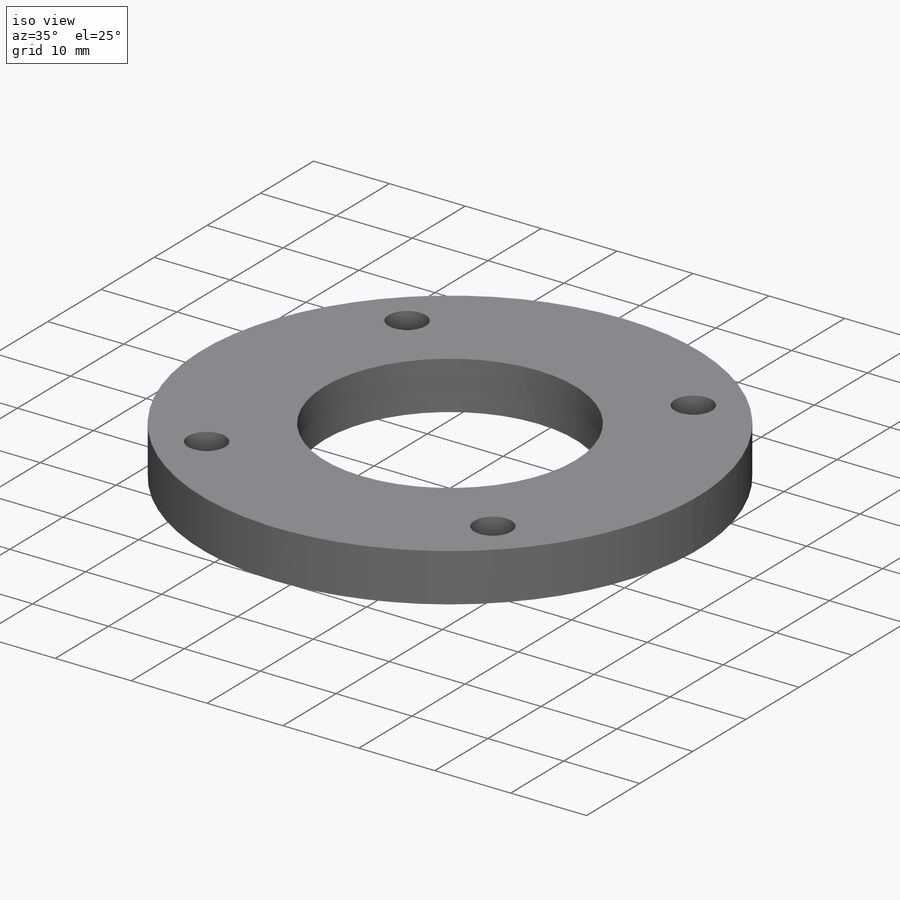
[diagram: iso view]
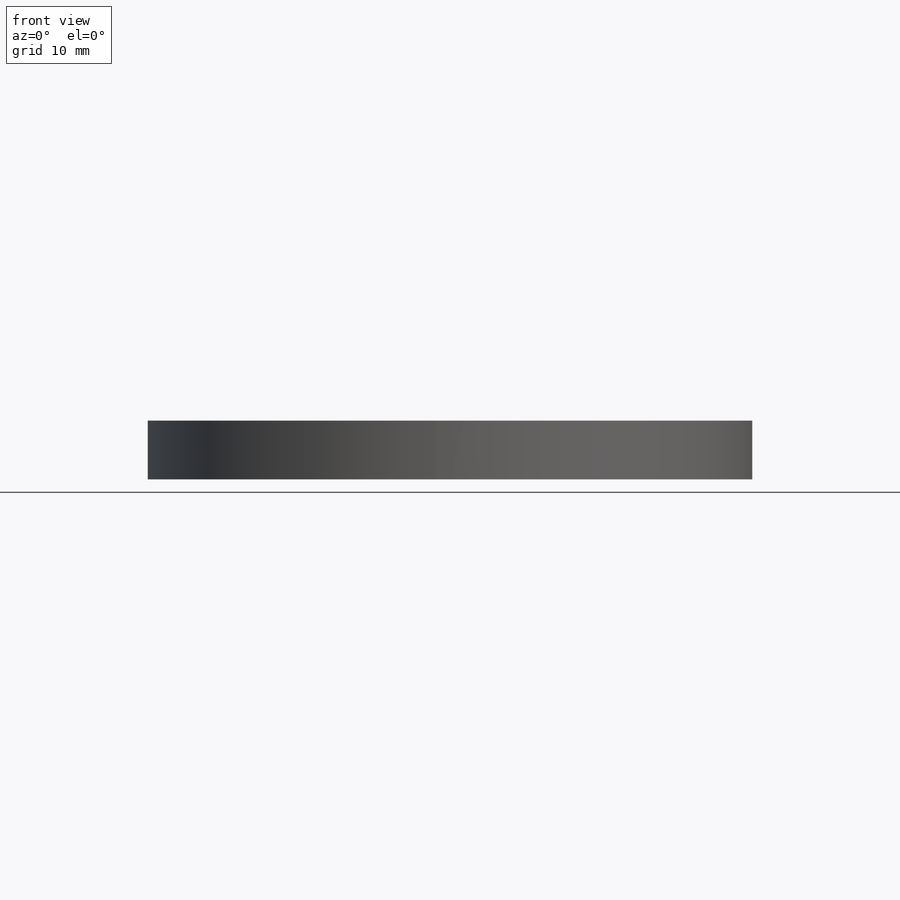
[diagram: front view]
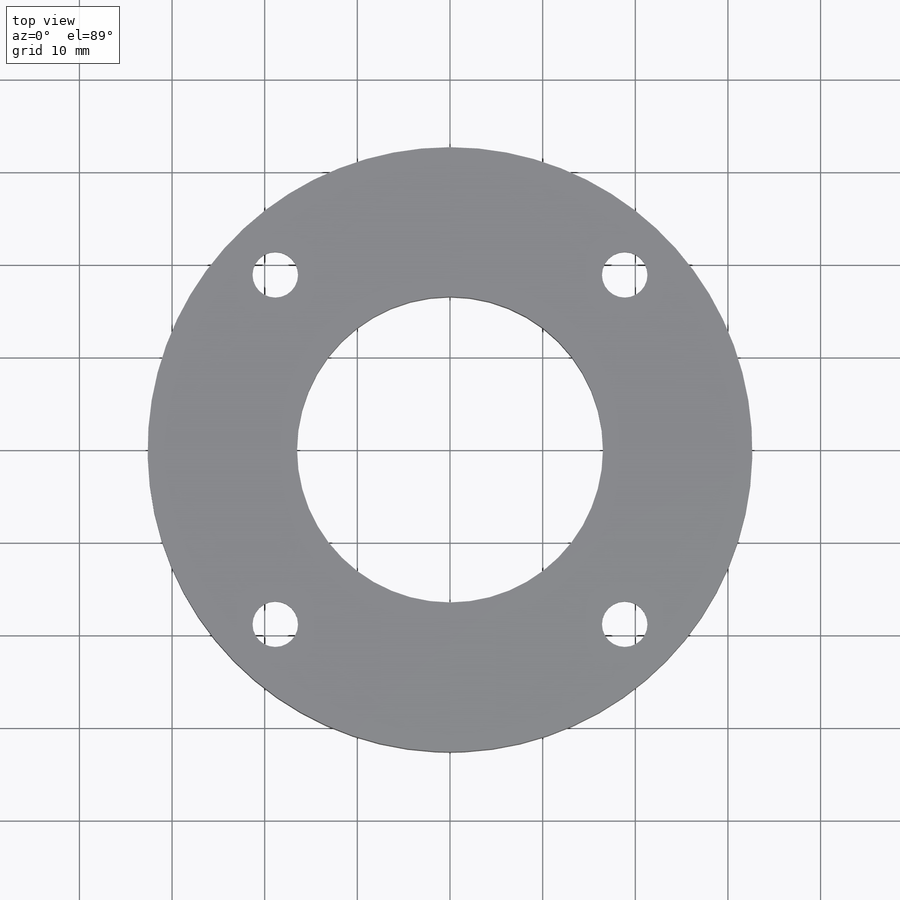
[diagram: top view]
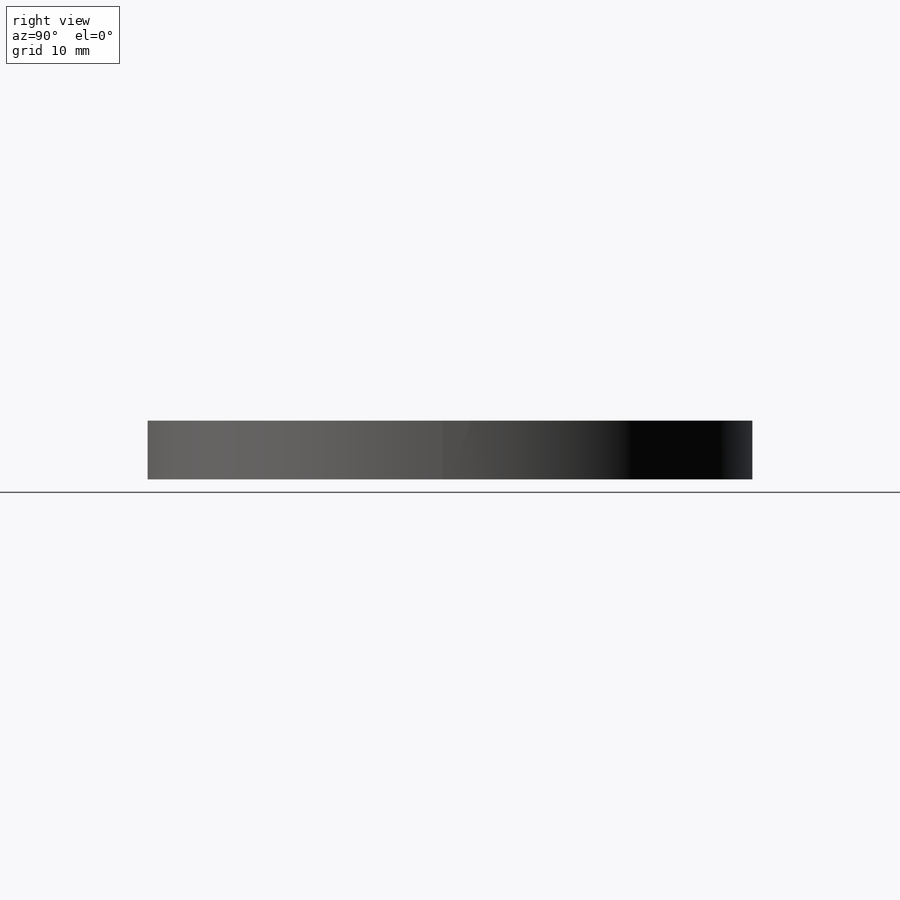
[diagram: right view]
SOLIDWORKS PART (.sldprt)
format: sldprt  version: not decoded by parser v0  size: 207,872 bytes
history: native  units: mm
features: sketch x4, material x1, extrude x1, hole x1 (+11 scaffold rows collapsed)
feature tree (18):
  scaffold x11  (default folders/planes/origin — collapsed)
  material  "6061-T6 (SS)"
  sketch  "Sketch1"  dims[D1=33.02mm D2=65.278mm]
  extrude  "Extrude1"  Depth=6.35mm
  sketch  "hole positions"  dims[D1=53.34mm]
  hole  "CBORE for #8 Socket Head Cap Screw1"  Diameter=4.9149mm Depth=6.35mm
  sketch  "3DSketch1"
  sketch  "Sketch3"  dims[hole-wizard template sketch: 42 standard entries collapsed; hole parameters kept: c12.Thru Hole Depth=6.35mm c12.C'Bore Dia.=7.9375mm c12.C'Bore Depth=4.1656mm]
decode coverage: 5 of 6 modeling features carry decoded parameters
note: ~ marks probable driven/reference dimensions
note: suppression state not decoded; provenance and decode notes live in map.json
